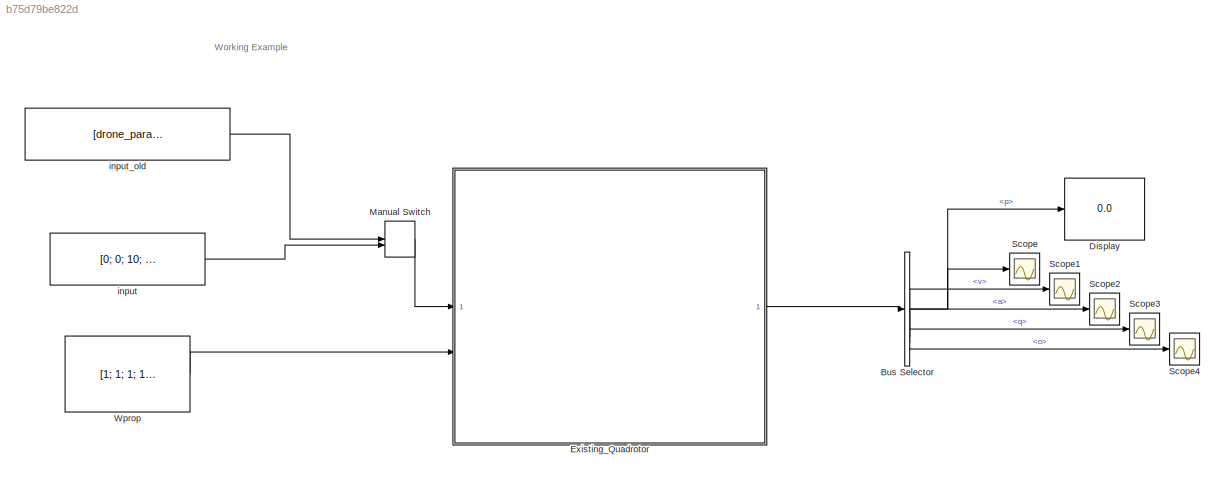
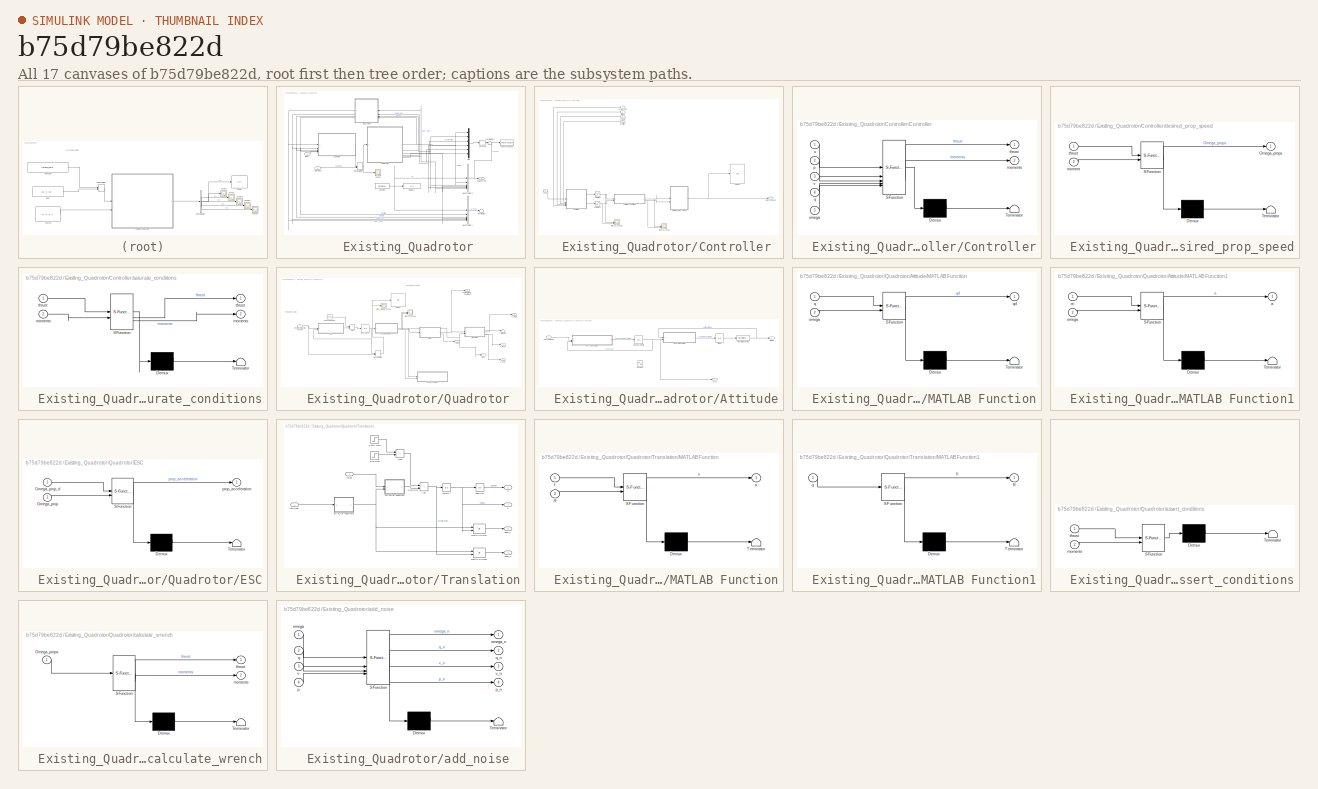
[diagram: thumbnail index - all 17 canvases of the model, root first then tree order]
MODEL slx_b75d79be822d
KIND model
CONFIG AbsTol = auto
CONFIG EnableMultiTasking = off
CONFIG FixedStep = auto
CONFIG InitFcn = main
CONFIG MaxStep = auto
CONFIG MinStep = auto
CONFIG RelTol = 1e-3
CONFIG SampleTimeConstraint = Unconstrained
CONFIG SolverName = VariableStepAuto
CONFIG StartTime = 0.0
CONFIG StopTime = tsim
BLOCK [SubSystem]   Existing_Quadrotor
BLOCK [BusCreator]   Existing_Quadrotor/Bus Creator1
  DisplayOption = bar
  InheritFromInputs = off
  Inputs = 6
  OutDataTypeStr = Bus: DroneStateBus
BLOCK [BusCreator]   Existing_Quadrotor/Bus Creator4
  DisplayOption = bar
  InheritFromInputs = off
  Inputs = 6
  OutDataTypeStr = Bus: DroneStateBus
BLOCK [Constant]   Existing_Quadrotor/Constant
  Value = DroneID
BLOCK [SubSystem]   Existing_Quadrotor/Controller
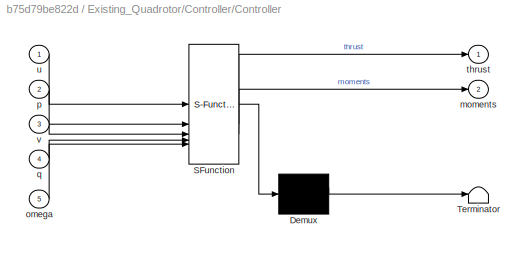
BLOCK [SubSystem]   Existing_Quadrotor/Controller/Controller
  ErrorFcn = Stateflow.Translate.translate
  PermitHierarchicalResolution = ExplicitOnly
  SFBlockType = MATLAB Function
  TreatAsAtomicUnit = on
BLOCK [Demux]   Existing_Quadrotor/Controller/Controller/ Demux 
  Outputs = 1
BLOCK [S-Function]   Existing_Quadrotor/Controller/Controller/ SFunction 
  EnableBusSupport = on
  FunctionName = sf_sfun
  Parameters = DroneID,control_type_param,drone_params,g
  PortCounts = [5 3]
  SFcnIsStateOwnerBlock = off
  SFunctionDeploymentMode = off
  Tag = Stateflow S-Function 77
BLOCK [Terminator]   Existing_Quadrotor/Controller/Controller/ Terminator 
BLOCK [Outport]   Existing_Quadrotor/Controller/Controller/moments
  Port = 2
BLOCK [Inport]   Existing_Quadrotor/Controller/Controller/omega
  Port = 5
BLOCK [Inport]   Existing_Quadrotor/Controller/Controller/p
  Port = 2
BLOCK [Inport]   Existing_Quadrotor/Controller/Controller/q
  Port = 4
BLOCK [Outport]   Existing_Quadrotor/Controller/Controller/thrust
BLOCK [Inport]   Existing_Quadrotor/Controller/Controller/u
BLOCK [Inport]   Existing_Quadrotor/Controller/Controller/v
  Port = 3
BLOCK [Display]   Existing_Quadrotor/Controller/Display
  Decimation = 1
BLOCK [Saturate]   Existing_Quadrotor/Controller/Saturation
  LowerLimit = 3
  UpperLimit = 16
BLOCK [Saturate]   Existing_Quadrotor/Controller/Saturation1
  LowerLimit = -0.1
  UpperLimit = 0.1
BLOCK [Inport]   Existing_Quadrotor/Controller/attitude
  Port = 2
BLOCK [SubSystem]   Existing_Quadrotor/Controller/desired_prop_speed
  ErrorFcn = Stateflow.Translate.translate
  PermitHierarchicalResolution = ExplicitOnly
  SFBlockType = MATLAB Function
  TreatAsAtomicUnit = on
BLOCK [Demux]   Existing_Quadrotor/Controller/desired_prop_speed/ Demux 
  Outputs = 1
BLOCK [S-Function]   Existing_Quadrotor/Controller/desired_prop_speed/ SFunction 
  EnableBusSupport = on
  FunctionName = sf_sfun
  Parameters = DroneID,drone_params
  PortCounts = [2 2]
  SFcnIsStateOwnerBlock = off
  SFunctionDeploymentMode = off
  Tag = Stateflow S-Function 78
BLOCK [Terminator]   Existing_Quadrotor/Controller/desired_prop_speed/ Terminator 
BLOCK [Outport]   Existing_Quadrotor/Controller/desired_prop_speed/Omega_props
BLOCK [Inport]   Existing_Quadrotor/Controller/desired_prop_speed/moment
  Port = 2
BLOCK [Inport]   Existing_Quadrotor/Controller/desired_prop_speed/thrust
BLOCK [Inport]   Existing_Quadrotor/Controller/gyroscope
BLOCK [Inport]   Existing_Quadrotor/Controller/input
  Port = 5
BLOCK [Inport]   Existing_Quadrotor/Controller/position
  Port = 4
BLOCK [Outport]   Existing_Quadrotor/Controller/prop_speeds
BLOCK [SubSystem]   Existing_Quadrotor/Controller/saturate_conditions
  ErrorFcn = Stateflow.Translate.translate
  PermitHierarchicalResolution = ExplicitOnly
  SFBlockType = MATLAB Function
  TreatAsAtomicUnit = on
BLOCK [Demux]   Existing_Quadrotor/Controller/saturate_conditions/ Demux 
  Outputs = 1
BLOCK [S-Function]   Existing_Quadrotor/Controller/saturate_conditions/ SFunction 
  EnableBusSupport = on
  FunctionName = sf_sfun
  Parameters = DroneID,drone_params
  PortCounts = [2 3]
  SFcnIsStateOwnerBlock = off
  SFunctionDeploymentMode = off
  Tag = Stateflow S-Function 1
BLOCK [Terminator]   Existing_Quadrotor/Controller/saturate_conditions/ Terminator 
BLOCK [Outport]   Existing_Quadrotor/Controller/saturate_conditions/moments
  Port = 2
BLOCK [Inport]   Existing_Quadrotor/Controller/saturate_conditions/moments 
  Port = 2
BLOCK [Outport]   Existing_Quadrotor/Controller/saturate_conditions/thrust
BLOCK [Inport]   Existing_Quadrotor/Controller/saturate_conditions/thrust 
BLOCK [Inport]   Existing_Quadrotor/Controller/velocity
  Port = 3
BLOCK [Scope]   Existing_Quadrotor/Controller/wrench_scope
  Floating = off
  NumInputPorts = 2
  ScopeSpecificationString = Simulink.scopes.TimeScopeBlockCfg('CurrentConfiguration', extmgr.ConfigurationSet(extmgr.Configuration('Core','General UI',true),extmgr.Configuration('Core','Source UI',true),extmgr.Configuration('Sources','WiredSimulink',true,'DataLoggingVariableName','ScopeData1'),extmgr.Configuration('Visuals','Time Domain',true,'SerializedDisplays',{struct('MinYLimReal','2.57557','MaxYLimReal','6.8199','YLabel...<+2165ch>
BLOCK [Scope]   Existing_Quadrotor/Controller/wrench_scope1
  Floating = off
  NumInputPorts = 2
  ScopeSpecificationString = Simulink.scopes.TimeScopeBlockCfg('CurrentConfiguration', extmgr.ConfigurationSet(extmgr.Configuration('Core','General UI',true),extmgr.Configuration('Core','Source UI',true),extmgr.Configuration('Sources','WiredSimulink',true,'DataLoggingVariableName','ScopeData1'),extmgr.Configuration('Visuals','Time Domain',true,'SerializedDisplays',{struct('MinYLimReal','2.57557','MaxYLimReal','6.8199','YLabel...<+2100ch>
BLOCK [Display]   Existing_Quadrotor/Display1
  Decimation = 1
BLOCK [Outport]   Existing_Quadrotor/Gound Truth
BLOCK [ManualSwitch]   Existing_Quadrotor/Manual Switch
BLOCK [Mux]   Existing_Quadrotor/Mux
  DisplayOption = bar
  Inputs = 6
BLOCK [Inport]   Existing_Quadrotor/Open loop
  Port = 2
BLOCK [SubSystem]   Existing_Quadrotor/Quadrotor
BLOCK [Sum]   Existing_Quadrotor/Quadrotor/Add
  IconShape = rectangular
BLOCK [SubSystem]   Existing_Quadrotor/Quadrotor/Attitude
BLOCK [Integrator]   Existing_Quadrotor/Quadrotor/Attitude/Attitude
  InitialCondition = q0(:,DroneID)
BLOCK [SubSystem]   Existing_Quadrotor/Quadrotor/Attitude/MATLAB Function
  ErrorFcn = Stateflow.Translate.translate
  PermitHierarchicalResolution = ExplicitOnly
  SFBlockType = MATLAB Function
  TreatAsAtomicUnit = on
BLOCK [Demux]   Existing_Quadrotor/Quadrotor/Attitude/MATLAB Function/ Demux 
  Outputs = 1
BLOCK [S-Function]   Existing_Quadrotor/Quadrotor/Attitude/MATLAB Function/ SFunction 
  EnableBusSupport = on
  FunctionName = sf_sfun
  PortCounts = [2 2]
  SFcnIsStateOwnerBlock = off
  SFunctionDeploymentMode = off
  Tag = Stateflow S-Function 79
BLOCK [Terminator]   Existing_Quadrotor/Quadrotor/Attitude/MATLAB Function/ Terminator 
BLOCK [Inport]   Existing_Quadrotor/Quadrotor/Attitude/MATLAB Function/omega
  Port = 2
BLOCK [Inport]   Existing_Quadrotor/Quadrotor/Attitude/MATLAB Function/q
BLOCK [Outport]   Existing_Quadrotor/Quadrotor/Attitude/MATLAB Function/qd
BLOCK [SubSystem]   Existing_Quadrotor/Quadrotor/Attitude/MATLAB Function1
  ErrorFcn = Stateflow.Translate.translate
  PermitHierarchicalResolution = ExplicitOnly
  SFBlockType = MATLAB Function
  TreatAsAtomicUnit = on
BLOCK [Demux]   Existing_Quadrotor/Quadrotor/Attitude/MATLAB Function1/ Demux 
  Outputs = 1
BLOCK [S-Function]   Existing_Quadrotor/Quadrotor/Attitude/MATLAB Function1/ SFunction 
  EnableBusSupport = on
  FunctionName = sf_sfun
  Parameters = DroneID,drone_params
  PortCounts = [2 2]
  SFcnIsStateOwnerBlock = off
  SFunctionDeploymentMode = off
  Tag = Stateflow S-Function 80
BLOCK [Terminator]   Existing_Quadrotor/Quadrotor/Attitude/MATLAB Function1/ Terminator 
BLOCK [Outport]   Existing_Quadrotor/Quadrotor/Attitude/MATLAB Function1/a
BLOCK [Inport]   Existing_Quadrotor/Quadrotor/Attitude/MATLAB Function1/m
BLOCK [Inport]   Existing_Quadrotor/Quadrotor/Attitude/MATLAB Function1/omega
  Port = 2
BLOCK [Reference]   Existing_Quadrotor/Quadrotor/Attitude/Normalize Vector  REF=vrlib/Utilities/Normalize Vector
  SourceBlock = vrlib/Utilities/Normalize Vector
  SourceType = Normalize Vector
BLOCK [Sin]   Existing_Quadrotor/Quadrotor/Attitude/Sine Wave
  Amplitude = [0.5;0.5;0.5]
  Commented = on
  Frequency = [1;0.3;0.6]
  SampleTime = 0
BLOCK [Integrator]   Existing_Quadrotor/Quadrotor/Attitude/angular velocity
  InitialCondition = omega0(:,DroneID)
BLOCK [Outport]   Existing_Quadrotor/Quadrotor/Attitude/attitude
BLOCK [Inport]   Existing_Quadrotor/Quadrotor/Attitude/body moments
BLOCK [Outport]   Existing_Quadrotor/Quadrotor/Attitude/gyro
  Port = 2
BLOCK [Display]   Existing_Quadrotor/Quadrotor/Display
  Decimation = 1
BLOCK [SubSystem]   Existing_Quadrotor/Quadrotor/ESC
  ErrorFcn = Stateflow.Translate.translate
  PermitHierarchicalResolution = ExplicitOnly
  SFBlockType = MATLAB Function
  TreatAsAtomicUnit = on
BLOCK [Demux]   Existing_Quadrotor/Quadrotor/ESC/ Demux 
  Outputs = 1
BLOCK [S-Function]   Existing_Quadrotor/Quadrotor/ESC/ SFunction 
  EnableBusSupport = on
  FunctionName = sf_sfun
  Parameters = DroneID,drone_params
  PortCounts = [2 2]
  SFcnIsStateOwnerBlock = off
  SFunctionDeploymentMode = off
  Tag = Stateflow S-Function 81
BLOCK [Terminator]   Existing_Quadrotor/Quadrotor/ESC/ Terminator 
BLOCK [Inport]   Existing_Quadrotor/Quadrotor/ESC/Omega_prop
  Port = 2
BLOCK [Inport]   Existing_Quadrotor/Quadrotor/ESC/Omega_prop_d
BLOCK [Outport]   Existing_Quadrotor/Quadrotor/ESC/prop_acceleration
BLOCK [ManualSwitch]   Existing_Quadrotor/Quadrotor/Manual Switch
  CurrentSetting = 0
BLOCK [RandomNumber]   Existing_Quadrotor/Quadrotor/Random Number
  Mean = [0;0;0;0]
  SampleTime = dt
  Seed = [1;2;3;4]
  Variance = [5000;5000;5000;5000]
BLOCK [Terminator]   Existing_Quadrotor/Quadrotor/Terminator
BLOCK [SubSystem]   Existing_Quadrotor/Quadrotor/Translation
BLOCK [Sum]   Existing_Quadrotor/Quadrotor/Translation/Add
  IconShape = rectangular
BLOCK [Sum]   Existing_Quadrotor/Quadrotor/Translation/Add1
  IconShape = rectangular
BLOCK [Step]   Existing_Quadrotor/Quadrotor/Translation/End Gust
  After = -1*gust_force/drone_params(DroneID).mechanical.m
  Before = [0;0;0]
  SampleTime = 0
  Time = gust_start + gust_duration
BLOCK [SubSystem]   Existing_Quadrotor/Quadrotor/Translation/MATLAB Function
  ErrorFcn = Stateflow.Translate.translate
  PermitHierarchicalResolution = ExplicitOnly
  SFBlockType = MATLAB Function
  TreatAsAtomicUnit = on
BLOCK [Demux]   Existing_Quadrotor/Quadrotor/Translation/MATLAB Function/ Demux 
  Outputs = 1
BLOCK [S-Function]   Existing_Quadrotor/Quadrotor/Translation/MATLAB Function/ SFunction 
  EnableBusSupport = on
  FunctionName = sf_sfun
  Parameters = DroneID,drone_params,g
  PortCounts = [2 2]
  SFcnIsStateOwnerBlock = off
  SFunctionDeploymentMode = off
  Tag = Stateflow S-Function 82
BLOCK [Terminator]   Existing_Quadrotor/Quadrotor/Translation/MATLAB Function/ Terminator 
BLOCK [Inport]   Existing_Quadrotor/Quadrotor/Translation/MATLAB Function/R
  Port = 2
BLOCK [Outport]   Existing_Quadrotor/Quadrotor/Translation/MATLAB Function/a
BLOCK [Inport]   Existing_Quadrotor/Quadrotor/Translation/MATLAB Function/f
BLOCK [SubSystem]   Existing_Quadrotor/Quadrotor/Translation/MATLAB Function1
  ErrorFcn = Stateflow.Translate.translate
  PermitHierarchicalResolution = ExplicitOnly
  SFBlockType = MATLAB Function
  TreatAsAtomicUnit = on
BLOCK [Demux]   Existing_Quadrotor/Quadrotor/Translation/MATLAB Function1/ Demux 
  Outputs = 1
BLOCK [S-Function]   Existing_Quadrotor/Quadrotor/Translation/MATLAB Function1/ SFunction 
  EnableBusSupport = on
  FunctionName = sf_sfun
  PortCounts = [1 2]
  SFcnIsStateOwnerBlock = off
  SFunctionDeploymentMode = off
  Tag = Stateflow S-Function 83
BLOCK [Terminator]   Existing_Quadrotor/Quadrotor/Translation/MATLAB Function1/ Terminator 
BLOCK [Outport]   Existing_Quadrotor/Quadrotor/Translation/MATLAB Function1/R
BLOCK [Inport]   Existing_Quadrotor/Quadrotor/Translation/MATLAB Function1/q
BLOCK [Product]   Existing_Quadrotor/Quadrotor/Translation/Matrix Divide
  Inputs = /*
  Multiplication = Matrix(*)
BLOCK [Product]   Existing_Quadrotor/Quadrotor/Translation/Matrix Divide1
  Inputs = /*
  Multiplication = Matrix(*)
BLOCK [Step]   Existing_Quadrotor/Quadrotor/Translation/Start Gust
  After = gust_force/drone_params(DroneID).mechanical.m
  Before = [0;0;0]
  SampleTime = 0
  Time = gust_start
BLOCK [Inport]   Existing_Quadrotor/Quadrotor/Translation/attitude
BLOCK [Outport]   Existing_Quadrotor/Quadrotor/Translation/body_a
  Port = 4
BLOCK [Outport]   Existing_Quadrotor/Quadrotor/Translation/body_v
  Port = 3
BLOCK [Outport]   Existing_Quadrotor/Quadrotor/Translation/p
BLOCK [Integrator]   Existing_Quadrotor/Quadrotor/Translation/position
  InitialCondition = p0(:,DroneID)
BLOCK [Inport]   Existing_Quadrotor/Quadrotor/Translation/thrust
  Port = 2
BLOCK [Outport]   Existing_Quadrotor/Quadrotor/Translation/v
  Port = 2
BLOCK [Integrator]   Existing_Quadrotor/Quadrotor/Translation/velocity
  InitialCondition = v0(:,DroneID)
BLOCK [Outport]   Existing_Quadrotor/Quadrotor/a_body
  Port = 3
BLOCK [SubSystem]   Existing_Quadrotor/Quadrotor/assert_conditions
  ErrorFcn = Stateflow.Translate.translate
  PermitHierarchicalResolution = ExplicitOnly
  SFBlockType = MATLAB Function
  TreatAsAtomicUnit = on
BLOCK [Demux]   Existing_Quadrotor/Quadrotor/assert_conditions/ Demux 
  Outputs = 1
BLOCK [S-Function]   Existing_Quadrotor/Quadrotor/assert_conditions/ SFunction 
  EnableBusSupport = on
  FunctionName = sf_sfun
  Parameters = DroneID,drone_params
  PortCounts = [2 1]
  SFcnIsStateOwnerBlock = off
  SFunctionDeploymentMode = off
  Tag = Stateflow S-Function 5
BLOCK [Terminator]   Existing_Quadrotor/Quadrotor/assert_conditions/ Terminator 
BLOCK [Inport]   Existing_Quadrotor/Quadrotor/assert_conditions/moments
  Port = 2
BLOCK [Inport]   Existing_Quadrotor/Quadrotor/assert_conditions/thrust
BLOCK [SubSystem]   Existing_Quadrotor/Quadrotor/calculate_wrench
  ErrorFcn = Stateflow.Translate.translate
  PermitHierarchicalResolution = ExplicitOnly
  SFBlockType = MATLAB Function
  TreatAsAtomicUnit = on
BLOCK [Demux]   Existing_Quadrotor/Quadrotor/calculate_wrench/ Demux 
  Outputs = 1
BLOCK [S-Function]   Existing_Quadrotor/Quadrotor/calculate_wrench/ SFunction 
  EnableBusSupport = on
  FunctionName = sf_sfun
  Parameters = DroneID,drone_params
  PortCounts = [1 3]
  SFcnIsStateOwnerBlock = off
  SFunctionDeploymentMode = off
  Tag = Stateflow S-Function 84
BLOCK [Terminator]   Existing_Quadrotor/Quadrotor/calculate_wrench/ Terminator 
BLOCK [Inport]   Existing_Quadrotor/Quadrotor/calculate_wrench/Omega_props
BLOCK [Outport]   Existing_Quadrotor/Quadrotor/calculate_wrench/moments
  Port = 2
BLOCK [Outport]   Existing_Quadrotor/Quadrotor/calculate_wrench/thrust
BLOCK [Inport]   Existing_Quadrotor/Quadrotor/desired_propellor_speeds
BLOCK [Outport]   Existing_Quadrotor/Quadrotor/gyro
  Port = 5
BLOCK [Outport]   Existing_Quadrotor/Quadrotor/p_world
BLOCK [Integrator]   Existing_Quadrotor/Quadrotor/prop_speed
  InitialCondition = drone_params(DroneID).motors.omega0
  LimitOutput = on
  LowerSaturationLimit = drone_params(DroneID).motors.omega_min
  UpperSaturationLimit = drone_params(DroneID).motors.omega_max
BLOCK [Scope]   Existing_Quadrotor/Quadrotor/prop_speed_scope
  Floating = off
  NumInputPorts = 1
  ScopeSpecificationString = Simulink.scopes.TimeScopeBlockCfg('CurrentConfiguration', extmgr.ConfigurationSet(extmgr.Configuration('Core','General UI',true),extmgr.Configuration('Core','Source UI',true),extmgr.Configuration('Sources','WiredSimulink',true,'DataLoggingVariableName','ScopeData3'),extmgr.Configuration('Visuals','Time Domain',true,'SerializedDisplays',{struct('MinYLimReal','-157.26457','MaxYLimReal','1415.38116',...<+1617ch>
BLOCK [Outport]   Existing_Quadrotor/Quadrotor/thrust
  Port = 6
BLOCK [Outport]   Existing_Quadrotor/Quadrotor/v_body
  Port = 2
BLOCK [Outport]   Existing_Quadrotor/Quadrotor/world2drone_quaternion
  Port = 4
BLOCK [Scope]   Existing_Quadrotor/Quadrotor/wrench_scope
  Floating = off
  NumInputPorts = 2
  ScopeSpecificationString = Simulink.scopes.TimeScopeBlockCfg('CurrentConfiguration', extmgr.ConfigurationSet(extmgr.Configuration('Core','General UI',true),extmgr.Configuration('Core','Source UI',true),extmgr.Configuration('Sources','WiredSimulink',true,'DataLoggingVariableName','ScopeData4'),extmgr.Configuration('Visuals','Time Domain',true,'SerializedDisplays',{struct('MinYLimReal','1.99221','MaxYLimReal','12.07008','YLab...<+2151ch>
BLOCK [Reshape]   Existing_Quadrotor/Reshape
BLOCK [Scope]   Existing_Quadrotor/Scope
  Floating = off
  NumInputPorts = 1
  ScopeSpecificationString = Simulink.scopes.TimeScopeBlockCfg('CurrentConfiguration', extmgr.ConfigurationSet(extmgr.Configuration('Core','General UI',true),extmgr.Configuration('Core','Source UI',true),extmgr.Configuration('Sources','WiredSimulink',true,'DataLoggingVariableName','ScopeData6'),extmgr.Configuration('Visuals','Time Domain',true,'SerializedDisplays',{struct('MinYLimReal','-0.54676','MaxYLimReal','1.54268','YLab...<+1447ch>
BLOCK [Terminator]   Existing_Quadrotor/Terminator
BLOCK [Terminator]   Existing_Quadrotor/Terminator1
BLOCK [ToWorkspace]   Existing_Quadrotor/To Workspace
  FixptAsFi = on
  MaxDataPoints = inf
  SampleTime = -1
  SaveFormat = Timeseries
  VariableName = Drone1
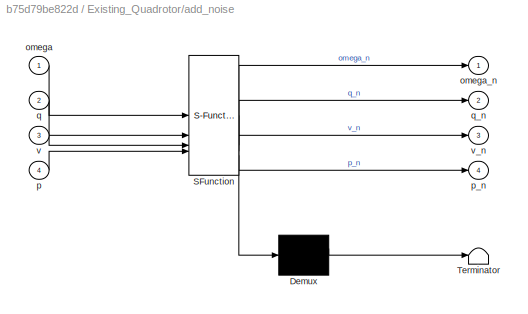
BLOCK [SubSystem]   Existing_Quadrotor/add_noise
  ErrorFcn = Stateflow.Translate.translate
  PermitHierarchicalResolution = ExplicitOnly
  SFBlockType = MATLAB Function
  TreatAsAtomicUnit = on
BLOCK [Demux]   Existing_Quadrotor/add_noise/ Demux 
  Outputs = 1
BLOCK [S-Function]   Existing_Quadrotor/add_noise/ SFunction 
  EnableBusSupport = on
  FunctionName = sf_sfun
  Parameters = DroneID,drone_params
  PortCounts = [4 5]
  SFcnIsStateOwnerBlock = off
  SFunctionDeploymentMode = off
  Tag = Stateflow S-Function 85
BLOCK [Terminator]   Existing_Quadrotor/add_noise/ Terminator 
BLOCK [Inport]   Existing_Quadrotor/add_noise/omega
BLOCK [Outport]   Existing_Quadrotor/add_noise/omega_n
BLOCK [Inport]   Existing_Quadrotor/add_noise/p
  Port = 4
BLOCK [Outport]   Existing_Quadrotor/add_noise/p_n
  Port = 4
BLOCK [Inport]   Existing_Quadrotor/add_noise/q
  Port = 2
BLOCK [Outport]   Existing_Quadrotor/add_noise/q_n
  Port = 2
BLOCK [Inport]   Existing_Quadrotor/add_noise/v
  Port = 3
BLOCK [Outport]   Existing_Quadrotor/add_noise/v_n
  Port = 3
BLOCK [Inport]   Existing_Quadrotor/input
BLOCK [BusSelector] Bus Selector
  OutputSignals = p,v,a,q,o
BLOCK [Display] Display
  Decimation = 1
BLOCK [ManualSwitch] Manual Switch
BLOCK [Scope] Scope
  Floating = off
  NumInputPorts = 1
  ScopeSpecificationString = Simulink.scopes.TimeScopeBlockCfg('CurrentConfiguration', extmgr.ConfigurationSet(extmgr.Configuration('Core','General UI',true),extmgr.Configuration('Core','Source UI',true),extmgr.Configuration('Sources','WiredSimulink',true,'DataLoggingVariableName','ScopeData1'),extmgr.Configuration('Visuals','Time Domain',true,'SerializedDisplays',{struct('MinYLimReal','-0.25','MaxYLimReal','2.25','YLabelReal...<+1465ch>
BLOCK [Scope] Scope1
  Floating = off
  NumInputPorts = 1
  ScopeSpecificationString = Simulink.scopes.TimeScopeBlockCfg('CurrentConfiguration', extmgr.ConfigurationSet(extmgr.Configuration('Core','General UI',true),extmgr.Configuration('Core','Source UI',true),extmgr.Configuration('Sources','WiredSimulink',true,'DataLoggingVariableName','ScopeData2'),extmgr.Configuration('Visuals','Time Domain',true,'SerializedDisplays',{struct('MinYLimReal','-1.00000','MaxYLimReal','1.00000','YLab...<+1415ch>
BLOCK [Scope] Scope2
  Floating = off
  NumInputPorts = 1
  ScopeSpecificationString = Simulink.scopes.TimeScopeBlockCfg('CurrentConfiguration', extmgr.ConfigurationSet(extmgr.Configuration('Core','General UI',true),extmgr.Configuration('Core','Source UI',true),extmgr.Configuration('Sources','WiredSimulink',true,'DataLoggingVariableName','ScopeData3'),extmgr.Configuration('Visuals','Time Domain',true,'SerializedDisplays',{struct('MinYLimReal','-7.69274','MaxYLimReal','8.31051','YLab...<+1409ch>
BLOCK [Scope] Scope3
  Floating = off
  NumInputPorts = 1
  ScopeSpecificationString = Simulink.scopes.TimeScopeBlockCfg('CurrentConfiguration', extmgr.ConfigurationSet(extmgr.Configuration('Core','General UI',true),extmgr.Configuration('Core','Source UI',true),extmgr.Configuration('Sources','WiredSimulink',true,'DataLoggingVariableName','ScopeData4'),extmgr.Configuration('Visuals','Time Domain',true,'SerializedDisplays',{struct('MinYLimReal','-1.24781','MaxYLimReal','1.24976','YLab...<+1415ch>
BLOCK [Scope] Scope4
  Floating = off
  NumInputPorts = 1
  ScopeSpecificationString = Simulink.scopes.TimeScopeBlockCfg('CurrentConfiguration', extmgr.ConfigurationSet(extmgr.Configuration('Core','General UI',true),extmgr.Configuration('Core','Source UI',true),extmgr.Configuration('Sources','WiredSimulink',true,'DataLoggingVariableName','ScopeData5'),extmgr.Configuration('Visuals','Time Domain',true,'SerializedDisplays',{struct('MinYLimReal','-2.73242','MaxYLimReal','2.01795','YLab...<+1409ch>
BLOCK [Constant] Wprop
  Value = [1; 1; 1; 1]*10
BLOCK [Constant] input
  Value = [0; 0; 10; 0]
BLOCK [Constant] input_old
  Value = [drone_params(1).mechanical.m*g;4;3;-1]
ANNOTATION (root): Working Example
ANNOTATION   Existing_Quadrotor/Quadrotor: Propeller Dynamics
ANNOTATION   Existing_Quadrotor/Quadrotor: Quadrotor_dynamics
LINE   Existing_Quadrotor/Bus Creator1:1 ->   Existing_Quadrotor/Terminator:1
NET   Existing_Quadrotor/Bus Creator4:1 ->   Existing_Quadrotor/Gound Truth:1,   Existing_Quadrotor/To Workspace:1
NET   Existing_Quadrotor/Constant:1 ->   Existing_Quadrotor/Bus Creator1:1,   Existing_Quadrotor/Bus Creator4:1,   Existing_Quadrotor/Display1:1
LINE   Existing_Quadrotor/Controller/Controller:1 ->   Existing_Quadrotor/Controller/Saturation:1
LINE   Existing_Quadrotor/Controller/Controller:2 ->   Existing_Quadrotor/Controller/Saturation1:1
NET   Existing_Quadrotor/Controller/Saturation1:1 ->   Existing_Quadrotor/Controller/saturate_conditions:2,   Existing_Quadrotor/Controller/wrench_scope1:2
NET   Existing_Quadrotor/Controller/Saturation:1 ->   Existing_Quadrotor/Controller/saturate_conditions:1,   Existing_Quadrotor/Controller/wrench_scope1:1
LINE   Existing_Quadrotor/Controller/attitude:1 ->   Existing_Quadrotor/Controller/Controller:4
NET   Existing_Quadrotor/Controller/desired_prop_speed:1 ->   Existing_Quadrotor/Controller/Display:1,   Existing_Quadrotor/Controller/prop_speeds:1
LINE   Existing_Quadrotor/Controller/gyroscope:1 ->   Existing_Quadrotor/Controller/Controller:5
LINE   Existing_Quadrotor/Controller/input:1 ->   Existing_Quadrotor/Controller/Controller:1
LINE   Existing_Quadrotor/Controller/position:1 ->   Existing_Quadrotor/Controller/Controller:2
NET   Existing_Quadrotor/Controller/saturate_conditions:1 ->   Existing_Quadrotor/Controller/desired_prop_speed:1,   Existing_Quadrotor/Controller/wrench_scope:1
NET   Existing_Quadrotor/Controller/saturate_conditions:2 ->   Existing_Quadrotor/Controller/desired_prop_speed:2,   Existing_Quadrotor/Controller/wrench_scope:2
LINE   Existing_Quadrotor/Controller/velocity:1 ->   Existing_Quadrotor/Controller/Controller:3
LINE   Existing_Quadrotor/Controller:1 ->   Existing_Quadrotor/Manual Switch:1
NET   Existing_Quadrotor/Manual Switch:1 ->   Existing_Quadrotor/Quadrotor:1,   Existing_Quadrotor/Scope:1
LINE   Existing_Quadrotor/Mux:1 ->   Existing_Quadrotor/Reshape:1
LINE   Existing_Quadrotor/Open loop:1 ->   Existing_Quadrotor/Manual Switch:2
LINE   Existing_Quadrotor/Quadrotor/Add:1 ->   Existing_Quadrotor/Quadrotor/prop_speed:1
LINE   Existing_Quadrotor/Quadrotor/Attitude/Attitude:1 ->   Existing_Quadrotor/Quadrotor/Attitude/Normalize Vector:1
LINE   Existing_Quadrotor/Quadrotor/Attitude/MATLAB Function1:1 ->   Existing_Quadrotor/Quadrotor/Attitude/angular velocity:1
LINE   Existing_Quadrotor/Quadrotor/Attitude/MATLAB Function:1 ->   Existing_Quadrotor/Quadrotor/Attitude/Attitude:1
NET   Existing_Quadrotor/Quadrotor/Attitude/Normalize Vector:1 ->   Existing_Quadrotor/Quadrotor/Attitude/MATLAB Function:1,   Existing_Quadrotor/Quadrotor/Attitude/attitude:1
NET   Existing_Quadrotor/Quadrotor/Attitude/angular velocity:1 ->   Existing_Quadrotor/Quadrotor/Attitude/MATLAB Function1:2,   Existing_Quadrotor/Quadrotor/Attitude/MATLAB Function:2,   Existing_Quadrotor/Quadrotor/Attitude/gyro:1
LINE   Existing_Quadrotor/Quadrotor/Attitude/body moments:1 ->   Existing_Quadrotor/Quadrotor/Attitude/MATLAB Function1:1
NET   Existing_Quadrotor/Quadrotor/Attitude:1 ->   Existing_Quadrotor/Quadrotor/Translation:1,   Existing_Quadrotor/Quadrotor/world2drone_quaternion:1
LINE   Existing_Quadrotor/Quadrotor/Attitude:2 ->   Existing_Quadrotor/Quadrotor/gyro:1
LINE   Existing_Quadrotor/Quadrotor/ESC:1 ->   Existing_Quadrotor/Quadrotor/Add:2
NET   Existing_Quadrotor/Quadrotor/Manual Switch:1 ->   Existing_Quadrotor/Quadrotor/Display:1,   Existing_Quadrotor/Quadrotor/calculate_wrench:1,   Existing_Quadrotor/Quadrotor/prop_speed_scope:1
LINE   Existing_Quadrotor/Quadrotor/Random Number:1 ->   Existing_Quadrotor/Quadrotor/Add:1
LINE   Existing_Quadrotor/Quadrotor/Translation/Add1:1 ->   Existing_Quadrotor/Quadrotor/Translation/Add:1
NET   Existing_Quadrotor/Quadrotor/Translation/Add:1 ->   Existing_Quadrotor/Quadrotor/Translation/Matrix Divide1:2,   Existing_Quadrotor/Quadrotor/Translation/velocity:1
LINE   Existing_Quadrotor/Quadrotor/Translation/End Gust:1 ->   Existing_Quadrotor/Quadrotor/Translation/Add1:2
NET   Existing_Quadrotor/Quadrotor/Translation/MATLAB Function1:1 ->   Existing_Quadrotor/Quadrotor/Translation/MATLAB Function:2,   Existing_Quadrotor/Quadrotor/Translation/Matrix Divide1:1,   Existing_Quadrotor/Quadrotor/Translation/Matrix Divide:1
LINE   Existing_Quadrotor/Quadrotor/Translation/MATLAB Function:1 ->   Existing_Quadrotor/Quadrotor/Translation/Add:2
LINE   Existing_Quadrotor/Quadrotor/Translation/Matrix Divide1:1 ->   Existing_Quadrotor/Quadrotor/Translation/body_a:1
LINE   Existing_Quadrotor/Quadrotor/Translation/Matrix Divide:1 ->   Existing_Quadrotor/Quadrotor/Translation/body_v:1
LINE   Existing_Quadrotor/Quadrotor/Translation/Start Gust:1 ->   Existing_Quadrotor/Quadrotor/Translation/Add1:1
LINE   Existing_Quadrotor/Quadrotor/Translation/attitude:1 ->   Existing_Quadrotor/Quadrotor/Translation/MATLAB Function1:1
LINE   Existing_Quadrotor/Quadrotor/Translation/position:1 ->   Existing_Quadrotor/Quadrotor/Translation/p:1
LINE   Existing_Quadrotor/Quadrotor/Translation/thrust:1 ->   Existing_Quadrotor/Quadrotor/Translation/MATLAB Function:1
NET   Existing_Quadrotor/Quadrotor/Translation/velocity:1 ->   Existing_Quadrotor/Quadrotor/Translation/Matrix Divide:2,   Existing_Quadrotor/Quadrotor/Translation/position:1,   Existing_Quadrotor/Quadrotor/Translation/v:1
LINE   Existing_Quadrotor/Quadrotor/Translation:1 ->   Existing_Quadrotor/Quadrotor/p_world:1
LINE   Existing_Quadrotor/Quadrotor/Translation:2 ->   Existing_Quadrotor/Quadrotor/Terminator:1
LINE   Existing_Quadrotor/Quadrotor/Translation:3 ->   Existing_Quadrotor/Quadrotor/v_body:1
LINE   Existing_Quadrotor/Quadrotor/Translation:4 ->   Existing_Quadrotor/Quadrotor/a_body:1
NET   Existing_Quadrotor/Quadrotor/calculate_wrench:1 ->   Existing_Quadrotor/Quadrotor/Translation:2,   Existing_Quadrotor/Quadrotor/assert_conditions:1,   Existing_Quadrotor/Quadrotor/thrust:1,   Existing_Quadrotor/Quadrotor/wrench_scope:1
NET   Existing_Quadrotor/Quadrotor/calculate_wrench:2 ->   Existing_Quadrotor/Quadrotor/Attitude:1,   Existing_Quadrotor/Quadrotor/assert_conditions:2,   Existing_Quadrotor/Quadrotor/wrench_scope:2
NET   Existing_Quadrotor/Quadrotor/desired_propellor_speeds:1 ->   Existing_Quadrotor/Quadrotor/ESC:1,   Existing_Quadrotor/Quadrotor/Manual Switch:2
NET   Existing_Quadrotor/Quadrotor/prop_speed:1 ->   Existing_Quadrotor/Quadrotor/ESC:2,   Existing_Quadrotor/Quadrotor/Manual Switch:1
NET   Existing_Quadrotor/Quadrotor:1 ->   Existing_Quadrotor/Bus Creator4:2,   Existing_Quadrotor/Mux:1,   Existing_Quadrotor/add_noise:4
NET   Existing_Quadrotor/Quadrotor:2 ->   Existing_Quadrotor/Bus Creator4:3,   Existing_Quadrotor/Mux:2,   Existing_Quadrotor/add_noise:3
NET   Existing_Quadrotor/Quadrotor:3 ->   Existing_Quadrotor/Bus Creator1:4,   Existing_Quadrotor/Bus Creator4:4,   Existing_Quadrotor/Mux:3
NET   Existing_Quadrotor/Quadrotor:4 ->   Existing_Quadrotor/Bus Creator4:5,   Existing_Quadrotor/Mux:4,   Existing_Quadrotor/add_noise:2
NET   Existing_Quadrotor/Quadrotor:5 ->   Existing_Quadrotor/Bus Creator4:6,   Existing_Quadrotor/Mux:5,   Existing_Quadrotor/add_noise:1
LINE   Existing_Quadrotor/Quadrotor:6 ->   Existing_Quadrotor/Mux:6
LINE   Existing_Quadrotor/Reshape:1 ->   Existing_Quadrotor/Terminator1:1
NET   Existing_Quadrotor/add_noise:1 ->   Existing_Quadrotor/Bus Creator1:6,   Existing_Quadrotor/Controller:1
NET   Existing_Quadrotor/add_noise:2 ->   Existing_Quadrotor/Bus Creator1:5,   Existing_Quadrotor/Controller:2
NET   Existing_Quadrotor/add_noise:3 ->   Existing_Quadrotor/Bus Creator1:3,   Existing_Quadrotor/Controller:3
NET   Existing_Quadrotor/add_noise:4 ->   Existing_Quadrotor/Bus Creator1:2,   Existing_Quadrotor/Controller:4
LINE   Existing_Quadrotor/input:1 ->   Existing_Quadrotor/Controller:5
LINE   Existing_Quadrotor:1 -> Bus Selector:1
NET Bus Selector:1 -> Display:1, Scope:1
LINE Bus Selector:2 -> Scope1:1
LINE Bus Selector:3 -> Scope2:1
LINE Bus Selector:4 -> Scope3:1
LINE Bus Selector:5 -> Scope4:1
LINE Manual Switch:1 ->   Existing_Quadrotor:1
LINE Wprop:1 ->   Existing_Quadrotor:2
LINE input:1 -> Manual Switch:2
LINE input_old:1 -> Manual Switch:1
note: NET lines group one-source signal fan-out (src -> all destinations, sorted); 1:1 wires keep LINE
CHART   Existing_Quadrotor/Quadrotor/Translation/MATLAB Function1 states=1 transitions=1
  STATE_LABEL 'eML_blk_kernel()'
  STATE_LABEL "SCRIPT:\nfunction R = quat2rotm(q)\n  R = eye(3);\n  coder.extrinsic('quat2rotm.m');\n  R = quat2rotm(q);\nend\n"
CHART   Existing_Quadrotor/Quadrotor/calculate_wrench states=1 transitions=1
  STATE_LABEL 'eML_blk_kernel()'
  STATE_LABEL 'SCRIPT:\nfunction [thrust, moments] =  invAllocation(Omega_props, drone_params, DroneID)\n\nwrench = drone_params(DroneID).control.allocation_matrix*Omega_props.^2;\n\nthrust = wrench(1);\nmoments = wrench(2:4);'
CHART   Existing_Quadrotor/add_noise states=1 transitions=1
  STATE_LABEL 'eML_blk_kernel()'
  STATE_LABEL 'SCRIPT:\nfunction [omega_n, q_n, v_n, p_n]= add_noise(omega,q,v,p, drone_params, DroneID)\n\nomega_n = omega + drone_params(DroneID).sensor.gyroscope_noise*(rand(3,1)-0.5);\n\nq_n = q + drone_params(DroneID).sensor.attitude_noise*(rand(4,1)-0.5);\nq_n = q_n/norm(q_n);\n\nv_n = v + drone_params(DroneID).sensor.velocity_noise*(rand(3,1)-0.5);\n\np_n = p + drone_params(DroneID).sensor.position_noise*(rand(3,1)...<+11ch>'
CHART   Existing_Quadrotor/Controller/saturate_conditions states=1 transitions=1
  STATE_LABEL 'eML_blk_kernel()'
  STATE_LABEL 'SCRIPT:\nfunction [thrust, moments] = saturate_conditions(thrust, moments, drone_params, DroneID)\n\ncoder.extrinsic("solve_conditions_old");\ncoder.extrinsic("verify_conditions_old");\n[verify_u, verify_2f] = verify_conditions_old(thrust,moments);\n\nif drone_params(DroneID).control.state == drone_params(DroneID).control.state_enum.unfolded\n    if (verify_u)\n        return;\n    end\n    moments(3) = solv...<+345ch>'
CHART   Existing_Quadrotor/Quadrotor/assert_conditions states=1 transitions=1
  STATE_LABEL 'eML_blk_kernel()'
  STATE_LABEL 'SCRIPT:\nfunction assert_conditions(thrust, moments, drone_params, DroneID)\n\ncoder.extrinsic("verify_conditions_old");\n[verify_u,verify_2f] = verify_conditions_old(thrust,moments);\n\nif drone_params(DroneID).control.state == drone_params(DroneID).control.state_enum.unfolded\n    if verify_u\n       return;\n    elseif verify_2f\n        disp("Passing to 2f");\n        drone_params(DroneID).mechanical.I =...<+2187ch>'
CHART   Existing_Quadrotor/Controller/Controller states=1 transitions=1
  STATE_LABEL 'eML_blk_kernel()'
  STATE_LABEL "SCRIPT:\nfunction [thrust, moments] = controller(u, p, v, q, omega, control_type_param, drone_params, DroneID, g)\n\n    thrust = 1; % set output dim\n    moments = [0;0;0]; % set output dim\n\n  coder.extrinsic('droneControl'); % link simulink to matlab function\n  \n  % do control\n  [thrust, moments] = droneControl(u, p, v, q, omega, ...\n    control_type_param, drone_params, DroneID, g);\n\n\nend\n"
CHART   Existing_Quadrotor/Controller/desired_prop_speed states=1 transitions=1
  STATE_LABEL 'eML_blk_kernel()'
  STATE_LABEL 'SCRIPT:\nfunction Omega_props  =  Allocation(thrust, moment, drone_params, DroneID)\n\n%  Omega_props = sqrt(inv(alloc_mat) * [thrust;moment]);\nOmega_props = real(sqrt(complex(drone_params(DroneID).control.allocation_matrix \\ [thrust;moment])));\n\nif drone_params(DroneID).control.state == drone_params(DroneID).control.state_enum.folded2\n    Omega_props = Omega_props.*[-1; -1; 1; 1];\nelseif drone_param...<+130ch>'
CHART   Existing_Quadrotor/Quadrotor/Attitude/MATLAB Function states=1 transitions=1
  STATE_LABEL 'eML_blk_kernel()'
  STATE_LABEL 'SCRIPT:\nfunction qd  = quaternion_derivative(q, omega)\n\n\nqd =  0.5 * multiplyQuaternions([0;omega],q);\n\nend\n\n\nfunction q = multiplyQuaternions(qA,qB)\nq0 = qA(1);\nq1 = qA(2);\nq2 = qA(3);\nq3 = qA(4);\nQ = [q0, -q1, -q2, -q3;\n     q1,  q0, -q3,  q2;\n     q2,  q3,  q0, -q1;\n     q3, -q2,  q1,  q0];\nq = Q * qB;\nend\n\n'
CHART   Existing_Quadrotor/Quadrotor/Attitude/MATLAB Function1 states=1 transitions=1
  STATE_LABEL 'eML_blk_kernel()'
  STATE_LABEL 'SCRIPT:\nfunction a = moments2angularacceleration(m, omega, drone_params, DroneID)\n\nI = drone_params(DroneID).mechanical.I;\na = inv(I)*m  - inv(I) * cross(omega,I*omega);\n'
CHART   Existing_Quadrotor/Quadrotor/ESC states=1 transitions=1
  STATE_LABEL 'eML_blk_kernel()'
  STATE_LABEL 'SCRIPT:\nfunction prop_acceleration  =  ESC_ctrl(Omega_prop_d, Omega_prop, DroneID, drone_params)\n\nprop_acceleration = (Omega_prop_d - Omega_prop)*drone_params(DroneID).motors.gain;'
CHART   Existing_Quadrotor/Quadrotor/Translation/MATLAB Function states=1 transitions=1
  STATE_LABEL 'eML_blk_kernel()'
  STATE_LABEL 'SCRIPT:\nfunction a = fcn(f, R, g, drone_params, DroneID)\nm = drone_params(DroneID).mechanical.m;\na = R*[0;0;f]/m - [0;0;g];\n'
CHART  states=0 transitions=0
CHART  states=0 transitions=0
CHART  states=0 transitions=0
CHART  states=0 transitions=0
CHART  states=0 transitions=0
CHART  states=0 transitions=0
CHART  states=0 transitions=0
CHART  states=0 transitions=0
CHART  states=0 transitions=0
CHART  states=0 transitions=0
CHART  states=0 transitions=0
